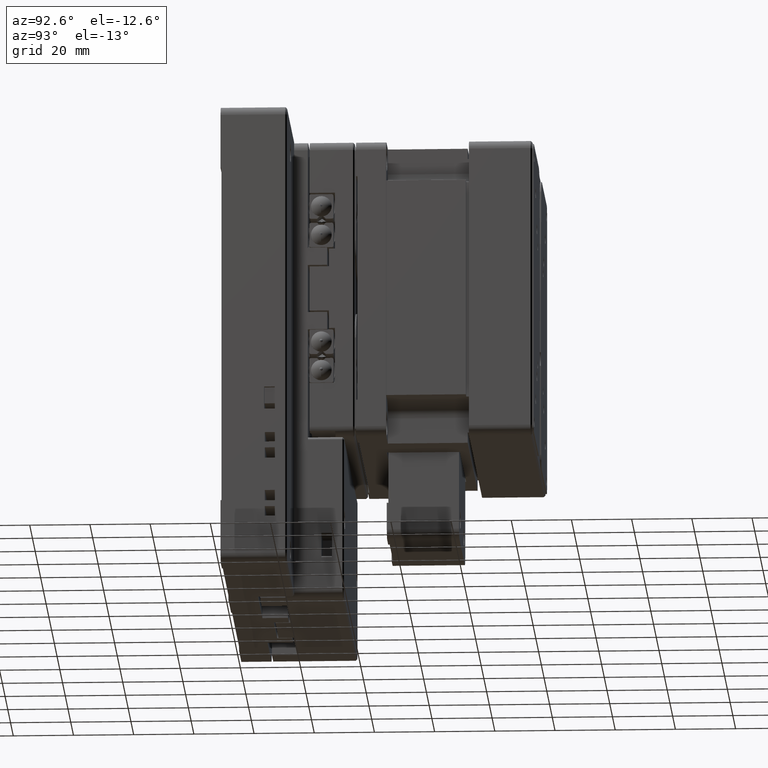
[diagram: clean part render]
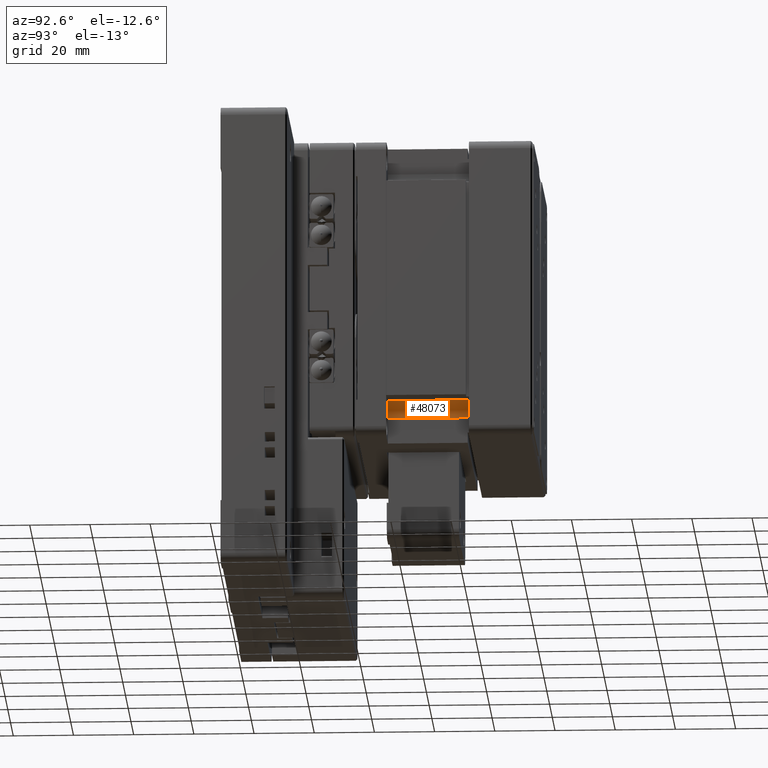
[diagram: same view with one face highlighted and labeled with its STEP entity id]
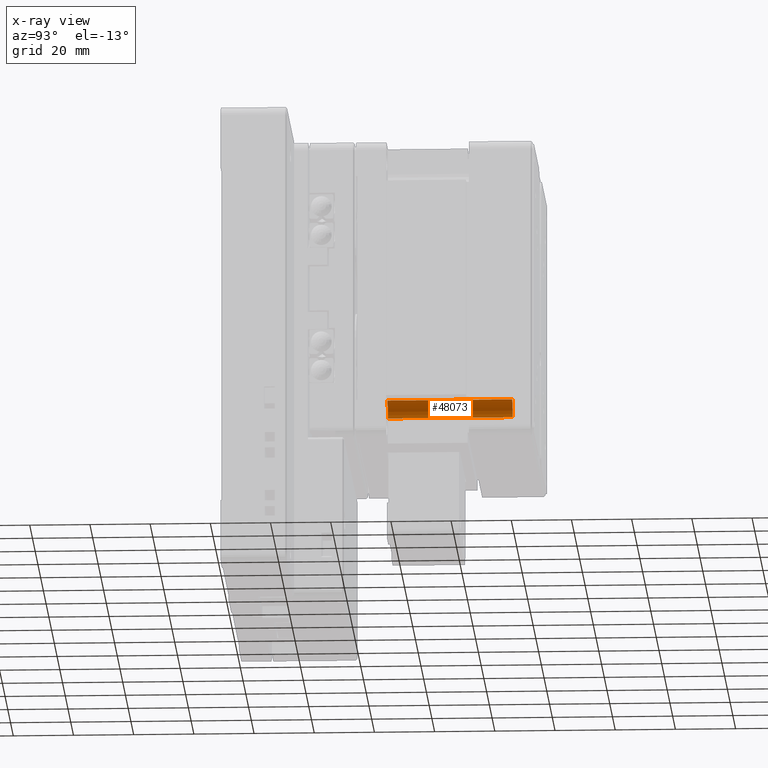
[diagram: x-ray of the same camera — body ghosted, the highlighted face saturated]
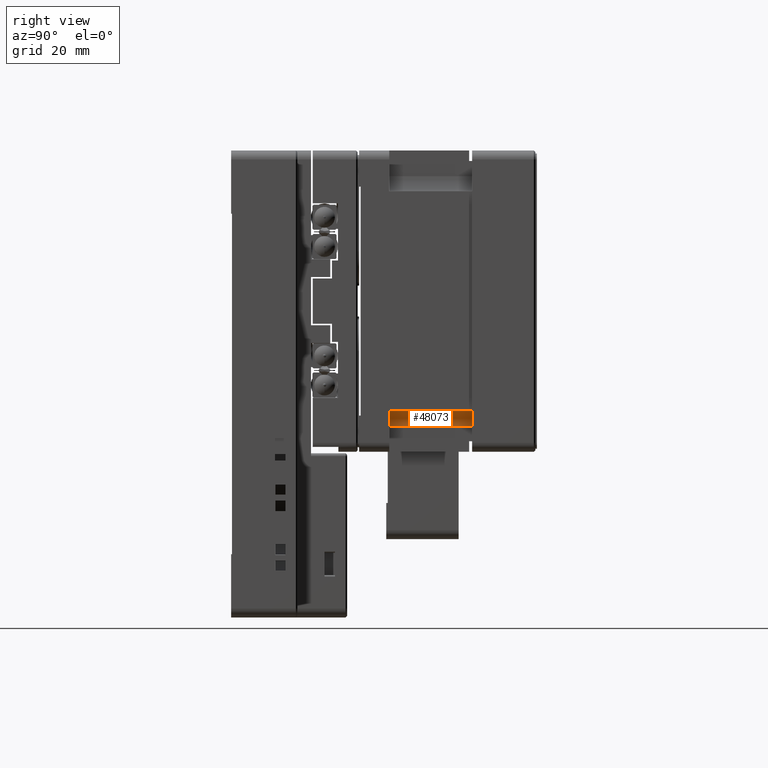
[diagram: same view with one face highlighted and labeled with its STEP entity id]
A machine part, auxiliary view. The second image highlights one B-rep face of the part: STEP entity #48073.
The next image is the same camera in x-ray: the body ghosted, the highlighted face saturated — about 0% of this face is hidden behind the body in this view.
A second angle (right view) of the same face is appended — the face is thin or edge-on in the first view.
In plain terms, the highlighted cylindrical surface (edge-blend (fillet) strip) has radius 5 mm, axis along (0, -1, 0).
Its self-contained STEP definition (entity closure, byte-faithful):
#81 = VECTOR ( 'NONE', #52583, 1000.000000000000000 ) ;
#3007 = DIRECTION ( 'NONE',  ( -1.000000000000000000, 0.000000000000000000, 1.387778780781446464E-15 ) ) ;
#5913 = CARTESIAN_POINT ( 'NONE',  ( 41.49999999999991473, 94.00000000000001421, -41.50000000000009237 ) ) ;
#6319 = CARTESIAN_POINT ( 'NONE',  ( 36.49999999999991473, 52.50000000000000711, -41.50000000000008527 ) ) ;
#7220 = CYLINDRICAL_SURFACE ( 'NONE', #24478, 4.999999999999997335 ) ;
#13796 = EDGE_CURVE ( 'NONE', #48305, #14040, #53511, .T. ) ;
#13817 = ORIENTED_EDGE ( 'NONE', *, *, #44305, .F. ) ;
#13950 = CARTESIAN_POINT ( 'NONE',  ( 41.49999999999992184, 52.50000000000000711, -36.50000000000009237 ) ) ;
#14040 = VERTEX_POINT ( 'NONE', #30763 ) ;
#15230 = DIRECTION ( 'NONE',  ( -1.000000000000000000, 0.000000000000000000, 1.387778780781446464E-15 ) ) ;
#15587 = FACE_OUTER_BOUND ( 'NONE', #19736, .T. ) ;
#19736 = EDGE_LOOP ( 'NONE', ( #34788, #46245, #13817, #29636 ) ) ;
#24252 = DIRECTION ( 'NONE',  ( 3.812484297624379892E-23, -1.000000000000000000, 3.650532473168982942E-23 ) ) ;
#24478 = AXIS2_PLACEMENT_3D ( 'NONE', #32648, #24252, #3007 ) ;
#25492 = EDGE_CURVE ( 'NONE', #48305, #30266, #42720, .T. ) ;
#27714 = DIRECTION ( 'NONE',  ( -1.000000000000000000, 0.000000000000000000, 1.387778780781446464E-15 ) ) ;
#28640 = CARTESIAN_POINT ( 'NONE',  ( 41.49999999999991473, 52.50000000000000711, -41.50000000000009237 ) ) ;
#29636 = ORIENTED_EDGE ( 'NONE', *, *, #25492, .F. ) ;
#30266 = VERTEX_POINT ( 'NONE', #30781 ) ;
#30763 = CARTESIAN_POINT ( 'NONE',  ( 36.49999999999991473, 94.00000000000002842, -41.50000000000008527 ) ) ;
#30781 = CARTESIAN_POINT ( 'NONE',  ( 41.49999999999992184, 52.50000000000000711, -36.50000000000009237 ) ) ;
#32648 = CARTESIAN_POINT ( 'NONE',  ( 41.49999999999991473, 52.50000000000000711, -41.50000000000009237 ) ) ;
#33007 = CARTESIAN_POINT ( 'NONE',  ( 41.49999999999992184, 94.00000000000002842, -36.50000000000009948 ) ) ;
#34788 = ORIENTED_EDGE ( 'NONE', *, *, #13796, .T. ) ;
#36421 = CARTESIAN_POINT ( 'NONE',  ( 36.49999999999991473, 52.50000000000000711, -41.50000000000008527 ) ) ;
#38965 = VERTEX_POINT ( 'NONE', #33007 ) ;
#40039 = AXIS2_PLACEMENT_3D ( 'NONE', #28640, #40663, #15230 ) ;
#40663 = DIRECTION ( 'NONE',  ( -3.812484297624379892E-23, 1.000000000000000000, -3.650532473168982942E-23 ) ) ;
#42691 = VECTOR ( 'NONE', #48741, 1000.000000000000000 ) ;
#42720 = CIRCLE ( 'NONE', #40039, 4.999999999999997335 ) ;
#42723 = AXIS2_PLACEMENT_3D ( 'NONE', #5913, #44788, #27714 ) ;
#42784 = LINE ( 'NONE', #13950, #81 ) ;
#43597 = CIRCLE ( 'NONE', #42723, 4.999999999999997335 ) ;
#44305 = EDGE_CURVE ( 'NONE', #30266, #38965, #42784, .T. ) ;
#44788 = DIRECTION ( 'NONE',  ( 3.812484297624379892E-23, -1.000000000000000000, 3.650532473168982942E-23 ) ) ;
#46245 = ORIENTED_EDGE ( 'NONE', *, *, #54824, .F. ) ;
#48073 = ADVANCED_FACE ( 'NONE', ( #15587 ), #7220, .F. ) ;
#48305 = VERTEX_POINT ( 'NONE', #6319 ) ;
#48741 = DIRECTION ( 'NONE',  ( -3.812484297624379892E-23, 1.000000000000000000, -3.650532473168982942E-23 ) ) ;
#52583 = DIRECTION ( 'NONE',  ( -3.812484297624379892E-23, 1.000000000000000000, -3.650532473168982942E-23 ) ) ;
#53511 = LINE ( 'NONE', #36421, #42691 ) ;
#54824 = EDGE_CURVE ( 'NONE', #38965, #14040, #43597, .T. ) ;